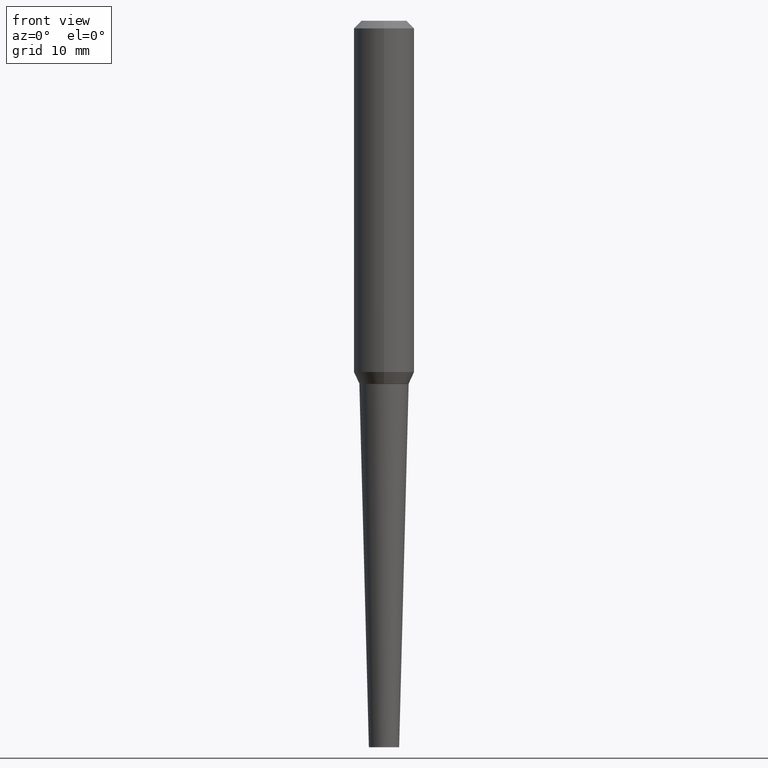
[diagram: clean part render]
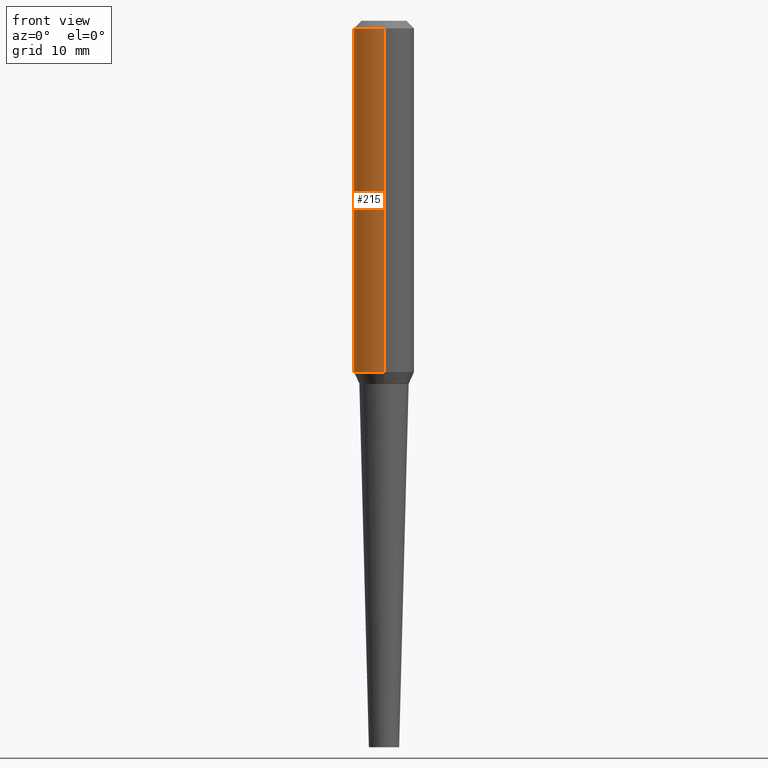
[diagram: same view with one face highlighted and labeled with its STEP entity id]
A machine part, front view. The second image highlights one B-rep face of the part: STEP entity #215.
In plain terms, the highlighted cylindrical surface (edge-blend (fillet) strip) has radius 3.175 mm, axis along (-0, 0, 1).
Its self-contained STEP definition (entity closure, byte-faithful):
#5 = DIRECTION ( 'NONE',  ( -6.982962677686265133E-15, -1.000000000000000000, 3.039180892951480529E-15 ) ) ;
#35 = EDGE_CURVE ( 'NONE', #303, #273, #318, .T. ) ;
#37 = CARTESIAN_POINT ( 'NONE',  ( -8.728703347107449805E-16, -0.1250000000000046629, -1.450202152505692510 ) ) ;
#47 = VECTOR ( 'NONE', #155, 39.37007874015748143 ) ;
#68 = AXIS2_PLACEMENT_3D ( 'NONE', #291, #359, #5 ) ;
#72 = EDGE_CURVE ( 'NONE', #273, #166, #284, .T. ) ;
#75 = ORIENTED_EDGE ( 'NONE', *, *, #72, .T. ) ;
#78 = ORIENTED_EDGE ( 'NONE', *, *, #342, .F. ) ;
#89 = DIRECTION ( 'NONE',  ( -2.770215560302487813E-29, 3.026425503509721227E-15, 1.000000000000000000 ) ) ;
#91 = FACE_OUTER_BOUND ( 'NONE', #143, .T. ) ;
#112 = DIRECTION ( 'NONE',  ( -2.770215560302487813E-29, 3.026425503509720832E-15, 1.000000000000000000 ) ) ;
#143 = EDGE_LOOP ( 'NONE', ( #362, #355, #75, #78 ) ) ;
#155 = DIRECTION ( 'NONE',  ( -2.770215560302487813E-29, 3.026425503509720832E-15, 1.000000000000000000 ) ) ;
#165 = CYLINDRICAL_SURFACE ( 'NONE', #340, 0.1250000000000001388 ) ;
#166 = VERTEX_POINT ( 'NONE', #257 ) ;
#174 = AXIS2_PLACEMENT_3D ( 'NONE', #287, #89, #217 ) ;
#186 = DIRECTION ( 'NONE',  ( -6.982962677686266711E-15, -1.000000000000000000, 3.026425503509721621E-15 ) ) ;
#187 = EDGE_CURVE ( 'NONE', #303, #335, #416, .T. ) ;
#215 = ADVANCED_FACE ( 'NONE', ( #91 ), #165, .T. ) ;
#217 = DIRECTION ( 'NONE',  ( -6.982962677686265922E-15, -1.000000000000000000, 2.185478394931414125E-15 ) ) ;
#228 = CARTESIAN_POINT ( 'NONE',  ( -3.397982428467408395E-30, -4.866104238714468673E-16, 1.912385453283800096E-17 ) ) ;
#230 = DIRECTION ( 'NONE',  ( -2.770215560302487813E-29, 3.026425503509721227E-15, 1.000000000000000000 ) ) ;
#256 = VECTOR ( 'NONE', #112, 39.37007874015748143 ) ;
#257 = CARTESIAN_POINT ( 'NONE',  ( -8.575622497214472631E-16, -0.1250000000000010825, -0.03124999999999970163 ) ) ;
#267 = CARTESIAN_POINT ( 'NONE',  ( 8.881784197001419956E-16, 0.1249999999999949069, -1.450202152505693176 ) ) ;
#273 = VERTEX_POINT ( 'NONE', #37 ) ;
#284 = LINE ( 'NONE', #317, #256 ) ;
#287 = CARTESIAN_POINT ( 'NONE',  ( 3.677574325608690539E-29, -4.875539203459369329E-15, -1.450202152505692732 ) ) ;
#291 = CARTESIAN_POINT ( 'NONE',  ( -2.532290065872877801E-30, -5.811862208561258652E-16, -0.03125000000000008327 ) ) ;
#303 = VERTEX_POINT ( 'NONE', #267 ) ;
#307 = CIRCLE ( 'NONE', #68, 0.1250000000000004996 ) ;
#317 = CARTESIAN_POINT ( 'NONE',  ( -8.728703347107876776E-16, -0.1250000000000006384, 3.974270424715535980E-16 ) ) ;
#318 = CIRCLE ( 'NONE', #174, 0.1249999999999997918 ) ;
#319 = CARTESIAN_POINT ( 'NONE',  ( 8.881784197001227671E-16, 0.1249999999999996808, -3.591793334058776454E-16 ) ) ;
#327 = CARTESIAN_POINT ( 'NONE',  ( 8.728703347107841277E-16, 0.1249999999999999167, -0.03125000000000045797 ) ) ;
#335 = VERTEX_POINT ( 'NONE', #327 ) ;
#340 = AXIS2_PLACEMENT_3D ( 'NONE', #228, #230, #186 ) ;
#342 = EDGE_CURVE ( 'NONE', #335, #166, #307, .T. ) ;
#355 = ORIENTED_EDGE ( 'NONE', *, *, #35, .T. ) ;
#359 = DIRECTION ( 'NONE',  ( -2.770215560302487813E-29, 3.026425503509721227E-15, 1.000000000000000000 ) ) ;
#362 = ORIENTED_EDGE ( 'NONE', *, *, #187, .F. ) ;
#416 = LINE ( 'NONE', #319, #47 ) ;